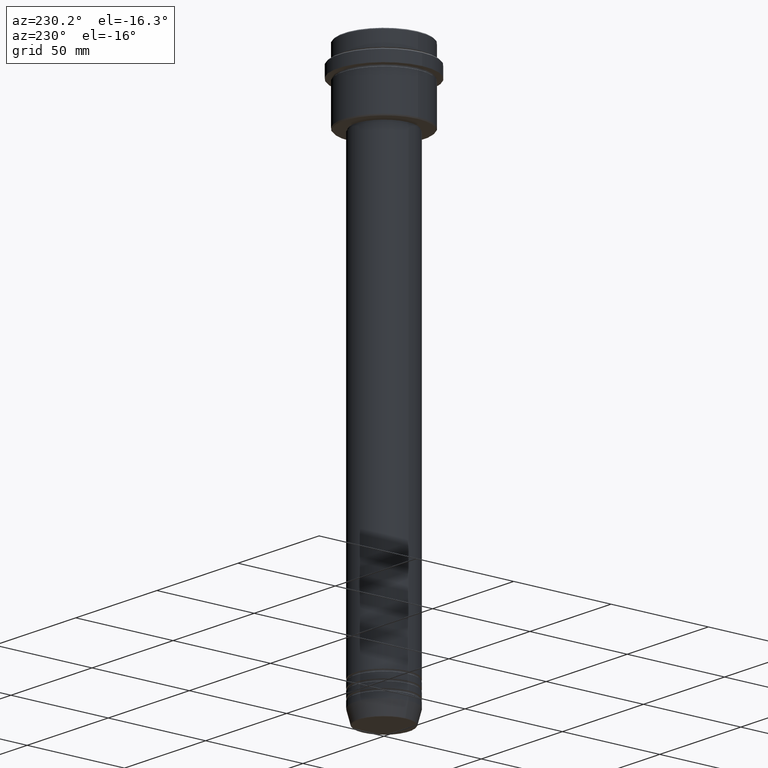
[diagram: clean part render]
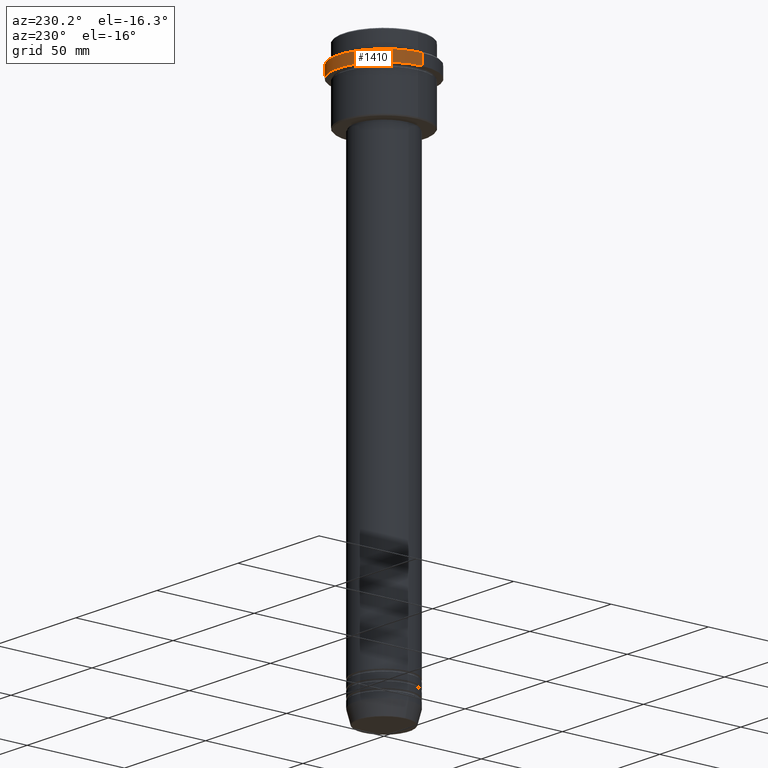
[diagram: same view with one face highlighted and labeled with its STEP entity id]
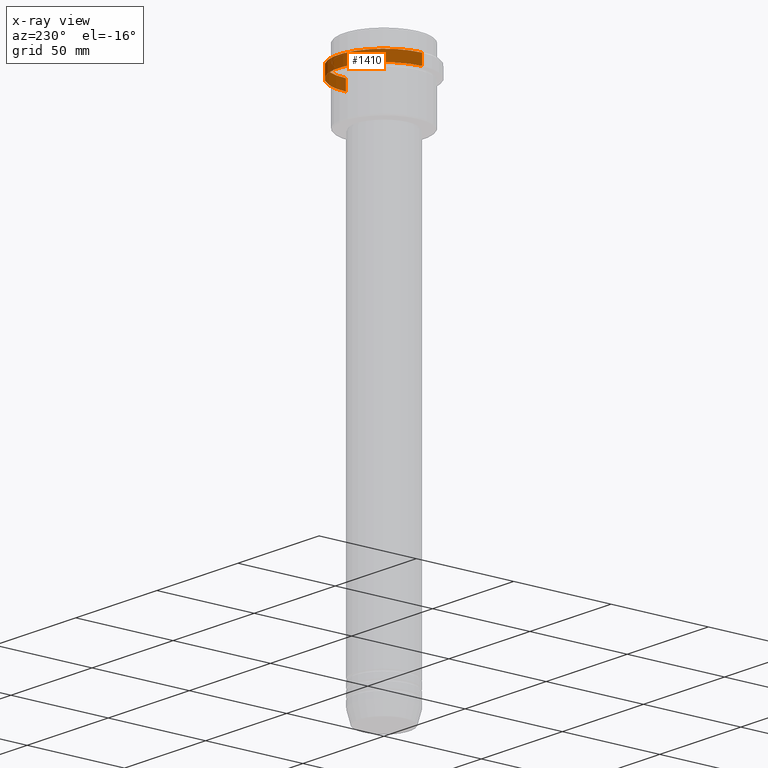
[diagram: x-ray of the same camera — body ghosted, the highlighted face saturated]
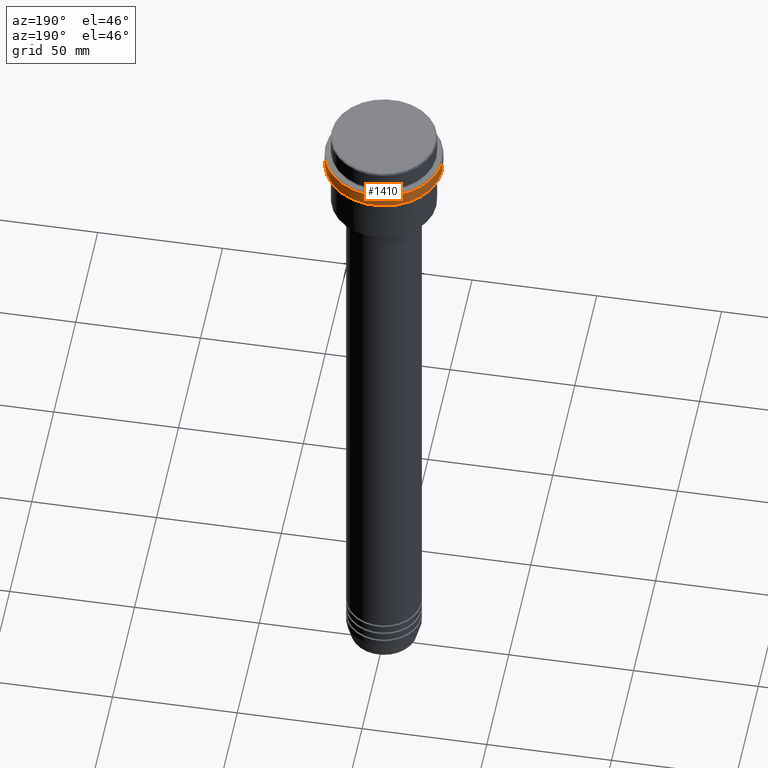
[diagram: same view with one face highlighted and labeled with its STEP entity id]
A machine part, auxiliary view. The second image highlights one B-rep face of the part: STEP entity #1410.
The next image is the same camera in x-ray: the body ghosted, the highlighted face saturated — about 5% of this face is hidden behind the body in this view.
A second angle (auxiliary view) of the same face is appended — the face is thin or edge-on in the first view.
In plain terms, the highlighted cylindrical surface (partial cylindrical patch) has radius 23.5 mm, axis along (-0, -0, 1).
Its self-contained STEP definition (entity closure, byte-faithful):
#4 = CARTESIAN_POINT ( 'NONE',  ( 0.000000000000000000, 0.000000000000000000, -9.500000000000026645 ) ) ;
#134 = AXIS2_PLACEMENT_3D ( 'NONE', #1363, #379, #817 ) ;
#135 = ORIENTED_EDGE ( 'NONE', *, *, #536, .T. ) ;
#146 = EDGE_LOOP ( 'NONE', ( #805, #356, #135, #1341 ) ) ;
#147 = CARTESIAN_POINT ( 'NONE',  ( 23.50000000000000355, 0.000000000000000000, -15.00000000000000000 ) ) ;
#210 = DIRECTION ( 'NONE',  ( -0.000000000000000000, -0.000000000000000000, 1.000000000000000000 ) ) ;
#273 = CARTESIAN_POINT ( 'NONE',  ( 0.000000000000000000, 0.000000000000000000, -15.00000000000000000 ) ) ;
#349 = EDGE_CURVE ( 'NONE', #728, #809, #1049, .T. ) ;
#356 = ORIENTED_EDGE ( 'NONE', *, *, #441, .T. ) ;
#379 = DIRECTION ( 'NONE',  ( -0.000000000000000000, -0.000000000000000000, 1.000000000000000000 ) ) ;
#404 = CARTESIAN_POINT ( 'NONE',  ( -23.50000000000000711, 2.877919977996281109E-15, -15.00000000000000000 ) ) ;
#441 = EDGE_CURVE ( 'NONE', #809, #1331, #1269, .T. ) ;
#536 = EDGE_CURVE ( 'NONE', #1331, #815, #814, .T. ) ;
#539 = CARTESIAN_POINT ( 'NONE',  ( 23.50000000000000000, 0.000000000000000000, 0.000000000000000000 ) ) ;
#611 = AXIS2_PLACEMENT_3D ( 'NONE', #4, #1340, #1007 ) ;
#708 = EDGE_CURVE ( 'NONE', #728, #815, #1082, .T. ) ;
#717 = DIRECTION ( 'NONE',  ( 1.000000000000000000, 0.000000000000000000, 0.000000000000000000 ) ) ;
#726 = DIRECTION ( 'NONE',  ( -0.000000000000000000, -0.000000000000000000, 1.000000000000000000 ) ) ;
#728 = VERTEX_POINT ( 'NONE', #147 ) ;
#737 = CARTESIAN_POINT ( 'NONE',  ( 23.50000000000000000, 0.000000000000000000, -9.500000000000026645 ) ) ;
#786 = CARTESIAN_POINT ( 'NONE',  ( -23.50000000000000000, 2.877919977996280320E-15, -9.500000000000026645 ) ) ;
#794 = DIRECTION ( 'NONE',  ( -0.000000000000000000, -0.000000000000000000, 1.000000000000000000 ) ) ;
#805 = ORIENTED_EDGE ( 'NONE', *, *, #349, .T. ) ;
#809 = VERTEX_POINT ( 'NONE', #404 ) ;
#814 = CIRCLE ( 'NONE', #611, 23.50000000000000000 ) ;
#815 = VERTEX_POINT ( 'NONE', #737 ) ;
#817 = DIRECTION ( 'NONE',  ( 1.000000000000000000, 0.000000000000000000, 0.000000000000000000 ) ) ;
#839 = AXIS2_PLACEMENT_3D ( 'NONE', #273, #726, #717 ) ;
#886 = VECTOR ( 'NONE', #210, 1000.000000000000000 ) ;
#909 = VECTOR ( 'NONE', #794, 1000.000000000000000 ) ;
#914 = FACE_OUTER_BOUND ( 'NONE', #146, .T. ) ;
#931 = CYLINDRICAL_SURFACE ( 'NONE', #134, 23.50000000000000000 ) ;
#1007 = DIRECTION ( 'NONE',  ( 1.000000000000000000, 0.000000000000000000, 0.000000000000000000 ) ) ;
#1049 = CIRCLE ( 'NONE', #839, 23.50000000000000355 ) ;
#1082 = LINE ( 'NONE', #539, #886 ) ;
#1119 = CARTESIAN_POINT ( 'NONE',  ( -23.50000000000000000, 2.877919977996280320E-15, 0.000000000000000000 ) ) ;
#1269 = LINE ( 'NONE', #1119, #909 ) ;
#1331 = VERTEX_POINT ( 'NONE', #786 ) ;
#1340 = DIRECTION ( 'NONE',  ( 0.000000000000000000, 0.000000000000000000, -1.000000000000000000 ) ) ;
#1341 = ORIENTED_EDGE ( 'NONE', *, *, #708, .F. ) ;
#1363 = CARTESIAN_POINT ( 'NONE',  ( 0.000000000000000000, 0.000000000000000000, 0.000000000000000000 ) ) ;
#1410 = ADVANCED_FACE ( 'NONE', ( #914 ), #931, .T. ) ;